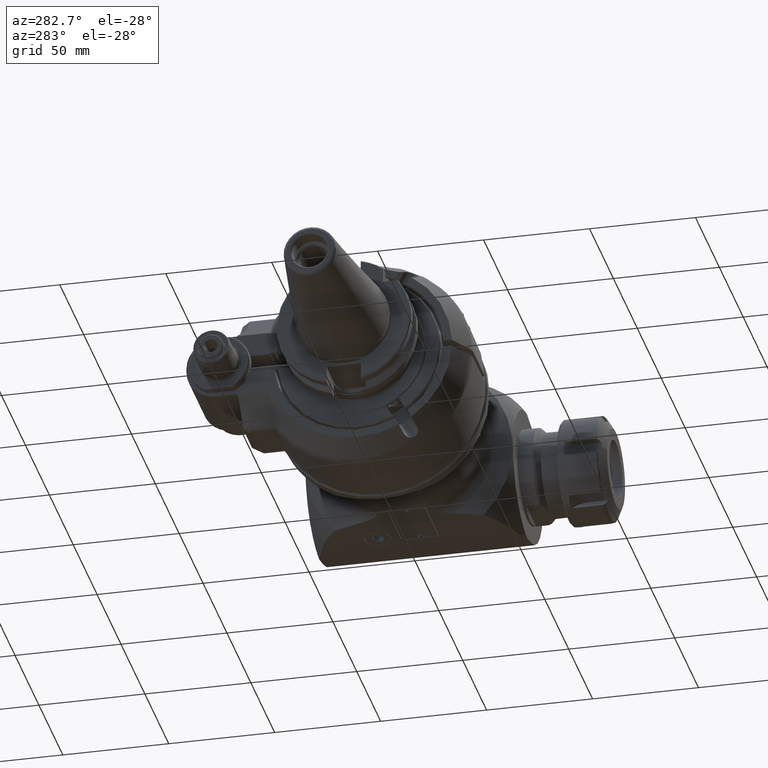
[diagram: clean part render]
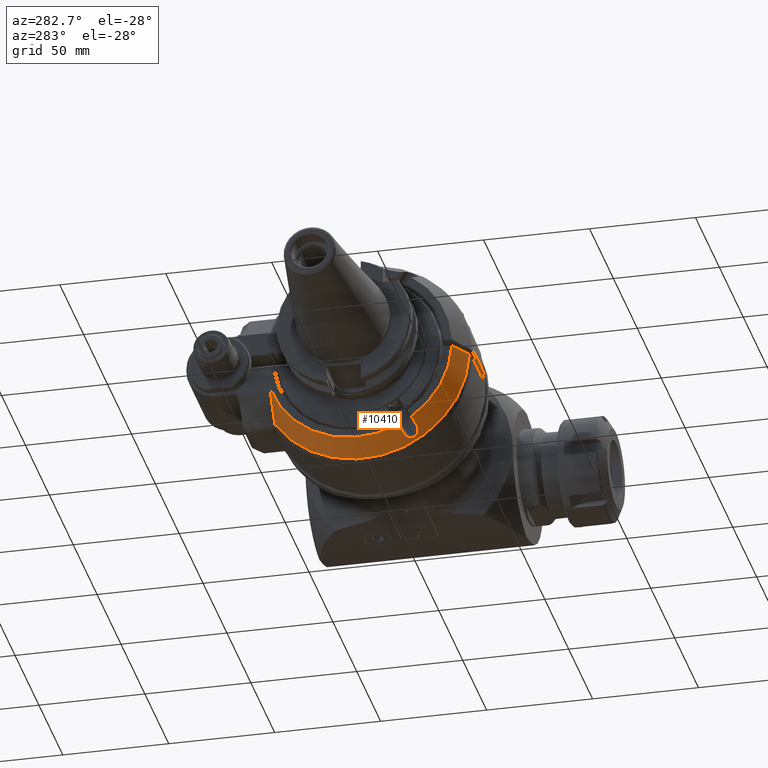
[diagram: same view with one face highlighted and labeled with its STEP entity id]
A machine part, auxiliary view. The second image highlights one B-rep face of the part: STEP entity #10410.
In plain terms, the highlighted conical surface has half-angle 30 deg.
Its self-contained STEP definition (entity closure, byte-faithful):
#101=CONICAL_SURFACE('',#11194,46.96410161514,0.523598775598299);
#257=(
BOUNDED_CURVE()
B_SPLINE_CURVE(2,(#21005,#21006,#21007),.UNSPECIFIED.,.F.,.F.)
B_SPLINE_CURVE_WITH_KNOTS((3,3),(-2.43290769105801,-0.320305328668483),
 .UNSPECIFIED.)
CURVE()
GEOMETRIC_REPRESENTATION_ITEM()
RATIONAL_B_SPLINE_CURVE((1.03252076511009,1.03062027413364,1.00749895945509))
REPRESENTATION_ITEM('')
);
#495=B_SPLINE_CURVE_WITH_KNOTS('',3,(#21126,#21127,#21128,#21129,#21130,
#21131,#21132,#21133,#21134,#21135),.UNSPECIFIED.,.F.,.F.,(4,3,3,4),(0.,
0.3333333333333,0.6666666666667,1.),.UNSPECIFIED.);
#498=B_SPLINE_CURVE_WITH_KNOTS('',3,(#21188,#21189,#21190,#21191,#21192,
#21193,#21194,#21195,#21196,#21197,#21198,#21199,#21200,#21201,#21202,#21203,
#21204,#21205),.UNSPECIFIED.,.F.,.F.,(4,2,2,2,2,2,2,2,4),(1.11206982951625,
1.24885677734264,1.4029266724495,1.5444028479349,1.68587902342029,1.82735519890569,
1.96883137439109,2.12290126949794,2.25968821732541),.UNSPECIFIED.);
#500=B_SPLINE_CURVE_WITH_KNOTS('',3,(#21227,#21228,#21229,#21230,#21231,
#21232,#21233,#21234,#21235,#21236),.UNSPECIFIED.,.F.,.F.,(4,3,3,4),(0.,
0.3333333333333,0.6666666666667,1.),.UNSPECIFIED.);
#501=B_SPLINE_CURVE_WITH_KNOTS('',3,(#21242,#21243,#21244,#21245,#21246,
#21247,#21248,#21249,#21250,#21251),.UNSPECIFIED.,.F.,.F.,(4,3,3,4),(0.,
0.3333333333333,0.6666666666667,1.),.UNSPECIFIED.);
#2615=FACE_OUTER_BOUND('',#3210,.T.);
#3210=EDGE_LOOP('',(#8293,#8294,#8295,#8296,#8297,#8298,#8299,#8300));
#3741=CIRCLE('',#11195,49.92820323028);
#3742=CIRCLE('',#11196,44.);
#3743=CIRCLE('',#11197,44.);
#4564=VERTEX_POINT('',#20993);
#4565=VERTEX_POINT('',#21004);
#4586=VERTEX_POINT('',#21123);
#4587=VERTEX_POINT('',#21125);
#4600=VERTEX_POINT('',#21186);
#4601=VERTEX_POINT('',#21187);
#4605=VERTEX_POINT('',#21226);
#4606=VERTEX_POINT('',#21240);
#5872=EDGE_CURVE('',#4564,#4565,#257,.T.);
#5899=EDGE_CURVE('',#4587,#4586,#495,.T.);
#5917=EDGE_CURVE('',#4600,#4601,#498,.F.);
#5924=EDGE_CURVE('',#4600,#4605,#500,.T.);
#5926=EDGE_CURVE('',#4587,#4564,#3741,.T.);
#5927=EDGE_CURVE('',#4606,#4586,#3742,.T.);
#5928=EDGE_CURVE('',#4606,#4601,#501,.T.);
#5929=EDGE_CURVE('',#4565,#4605,#3743,.T.);
#8293=ORIENTED_EDGE('',*,*,#5926,.F.);
#8294=ORIENTED_EDGE('',*,*,#5899,.T.);
#8295=ORIENTED_EDGE('',*,*,#5927,.F.);
#8296=ORIENTED_EDGE('',*,*,#5928,.T.);
#8297=ORIENTED_EDGE('',*,*,#5917,.F.);
#8298=ORIENTED_EDGE('',*,*,#5924,.T.);
#8299=ORIENTED_EDGE('',*,*,#5929,.F.);
#8300=ORIENTED_EDGE('',*,*,#5872,.F.);
#10410=ADVANCED_FACE('',(#2615),#101,.T.);
#11194=AXIS2_PLACEMENT_3D('',#21238,#12973,#12974);
#11195=AXIS2_PLACEMENT_3D('',#21239,#12975,#12976);
#11196=AXIS2_PLACEMENT_3D('',#21241,#12977,#12978);
#11197=AXIS2_PLACEMENT_3D('',#21252,#12979,#12980);
#12973=DIRECTION('center_axis',(1.,0.,0.));
#12974=DIRECTION('ref_axis',(0.,-1.,0.));
#12975=DIRECTION('center_axis',(1.,0.,0.));
#12976=DIRECTION('ref_axis',(0.,-0.999548602989596,-0.0300431400080999));
#12977=DIRECTION('center_axis',(-1.,0.,0.));
#12978=DIRECTION('ref_axis',(0.,-0.567304004296905,-0.823508449688707));
#12979=DIRECTION('center_axis',(-1.,0.,0.));
#12980=DIRECTION('ref_axis',(0.,0.948863636363632,-0.315686235979311));
#20993=CARTESIAN_POINT('',(-41.23205080757,41.75,-27.38180011986));
#21004=CARTESIAN_POINT('',(-51.5,41.74999999999,-13.89019438316));
#21005=CARTESIAN_POINT('Ctrl Pts',(-41.2320508075673,41.75,-27.3818001198562));
#21006=CARTESIAN_POINT('Ctrl Pts',(-48.0442956678564,41.75,-20.2102413126131));
#21007=CARTESIAN_POINT('Ctrl Pts',(-51.4999999999632,41.75,-13.8901943831554));
#21123=CARTESIAN_POINT('',(-51.5,-43.97442438509,-1.5));
#21125=CARTESIAN_POINT('',(-41.2320595617708,-49.9056607292726,-1.50000007595379));
#21126=CARTESIAN_POINT('Ctrl Pts',(-41.23206831446,-49.90565567486,-1.5));
#21127=CARTESIAN_POINT('Ctrl Pts',(-42.37293045262,-49.24668115316,-1.5));
#21128=CARTESIAN_POINT('Ctrl Pts',(-43.5138242319948,-48.5876765558151,
-1.5));
#21129=CARTESIAN_POINT('Ctrl Pts',(-44.6547122553555,-47.928662020786,-1.5));
#21130=CARTESIAN_POINT('Ctrl Pts',(-45.7956002787165,-47.2696474857567,
-1.5));
#21131=CARTESIAN_POINT('Ctrl Pts',(-46.9364825460635,-46.6106230130433,
-1.5));
#21132=CARTESIAN_POINT('Ctrl Pts',(-48.077363540237,-45.9515842405615,-1.5));
#21133=CARTESIAN_POINT('Ctrl Pts',(-49.2182445344102,-45.2925454680799,
-1.5));
#21134=CARTESIAN_POINT('Ctrl Pts',(-50.35912425541,-44.63349239583,-1.5));
#21135=CARTESIAN_POINT('Ctrl Pts',(-51.5,-43.97442438509,-1.5));
#21186=CARTESIAN_POINT('',(-46.5,-20.34687855495,-42.24182743261));
#21187=CARTESIAN_POINT('',(-46.5,-26.40905638145,-38.74182743261));
#21188=CARTESIAN_POINT('Ctrl Pts',(-46.5000000000002,-26.4090563814455,
-38.7418274326129));
#21189=CARTESIAN_POINT('Ctrl Pts',(-46.0992085079157,-26.5250786273062,
-38.9427838572518));
#21190=CARTESIAN_POINT('Ctrl Pts',(-45.6780271021362,-26.5877455833705,
-39.1945532832522));
#21191=CARTESIAN_POINT('Ctrl Pts',(-44.8336229766582,-26.5711996809164,
-39.7934207779667));
#21192=CARTESIAN_POINT('Ctrl Pts',(-44.416786404141,-26.4721822625297,-40.1489075806805));
#21193=CARTESIAN_POINT('Ctrl Pts',(-43.7689100689263,-26.1383338430384,
-40.8117265913294));
#21194=CARTESIAN_POINT('Ctrl Pts',(-43.4858969585476,-25.8928265156274,
-41.1623315039927));
#21195=CARTESIAN_POINT('Ctrl Pts',(-43.1011571537054,-25.2551263794943,
-41.8163473322267));
#21196=CARTESIAN_POINT('Ctrl Pts',(-43.,-24.8621451840586,-42.1193241407055));
#21197=CARTESIAN_POINT('Ctrl Pts',(-43.,-24.0453321040545,-42.5909113923235));
#21198=CARTESIAN_POINT('Ctrl Pts',(-43.1011571537054,-23.5864558934365,
-42.779754686541));
#21199=CARTESIAN_POINT('Ctrl Pts',(-43.4858969585476,-22.7012115036422,
-43.0050112903121));
#21200=CARTESIAN_POINT('Ctrl Pts',(-43.7689100689263,-22.2748250788787,
-43.0423244163336));
#21201=CARTESIAN_POINT('Ctrl Pts',(-44.416786404141,-21.5338827677997,-43.000036123302));
#21202=CARTESIAN_POINT('Ctrl Pts',(-44.8336229766582,-21.1765134567462,
-42.908044321685));
#21203=CARTESIAN_POINT('Ctrl Pts',(-45.6780271021394,-20.6496060415937,
-42.6229397461805));
#21204=CARTESIAN_POINT('Ctrl Pts',(-46.0992085079223,-20.4629008008123,
-42.4427838572491));
#21205=CARTESIAN_POINT('Ctrl Pts',(-46.5000000000096,-20.3468785549518,
-42.2418274326083));
#21226=CARTESIAN_POINT('',(-51.5,-18.89919836257,-39.7343717863));
#21227=CARTESIAN_POINT('Ctrl Pts',(-46.5000000000021,-20.3468785549516,
-42.2418274326133));
#21228=CARTESIAN_POINT('Ctrl Pts',(-47.0555636796788,-20.1860524218991,
-41.9632683989681));
#21229=CARTESIAN_POINT('Ctrl Pts',(-47.6111251834313,-20.0252176577258,
-41.6846944543344));
#21230=CARTESIAN_POINT('Ctrl Pts',(-48.1666839961781,-19.864373839952,-41.4061048113106));
#21231=CARTESIAN_POINT('Ctrl Pts',(-48.7222428089251,-19.7035300221781,
-41.1275151682867));
#21232=CARTESIAN_POINT('Ctrl Pts',(-49.2777989309903,-19.5426771511998,
-40.8489098273047));
#21233=CARTESIAN_POINT('Ctrl Pts',(-49.8333517949414,-19.381814745264,-40.5702879469552));
#21234=CARTESIAN_POINT('Ctrl Pts',(-50.3889046588924,-19.2209523393283,
-40.2916660666057));
#21235=CARTESIAN_POINT('Ctrl Pts',(-50.9444542651007,-19.0600803989606,
-40.0130276473512));
#21236=CARTESIAN_POINT('Ctrl Pts',(-51.5000000000014,-18.8991983625711,
-39.7343717863022));
#21238=CARTESIAN_POINT('Origin',(-46.36602540378,0.,0.));
#21239=CARTESIAN_POINT('Origin',(-41.23205080757,0.,0.));
#21240=CARTESIAN_POINT('',(-51.5,-24.96137618907,-36.2343717863));
#21241=CARTESIAN_POINT('Origin',(-51.5,0.,0.));
#21242=CARTESIAN_POINT('Ctrl Pts',(-51.4999999999995,-24.9613761890695,
-36.2343717862992));
#21243=CARTESIAN_POINT('Ctrl Pts',(-50.9444542651011,-25.1222582254511,
-36.5130276473516));
#21244=CARTESIAN_POINT('Ctrl Pts',(-50.3889046588926,-25.2831302048165,
-36.7916660440905));
#21245=CARTESIAN_POINT('Ctrl Pts',(-49.8333517949413,-25.4439926282826,
-37.070287914319));
#21246=CARTESIAN_POINT('Ctrl Pts',(-49.2777989309897,-25.6048550517487,
-37.3489097845476));
#21247=CARTESIAN_POINT('Ctrl Pts',(-48.7222428089239,-25.7657079191777,
-37.6275151275794));
#21248=CARTESIAN_POINT('Ctrl Pts',(-48.166683996177,-25.9265517183818,-37.9061047813243));
#21249=CARTESIAN_POINT('Ctrl Pts',(-47.6111251834304,-26.0873955175858,
-38.1846944350692));
#21250=CARTESIAN_POINT('Ctrl Pts',(-47.0555636796788,-26.2482302483888,
-38.4632683989682));
#21251=CARTESIAN_POINT('Ctrl Pts',(-46.5,-26.40905638145,-38.74182743261));
#21252=CARTESIAN_POINT('Origin',(-51.5,0.,0.));